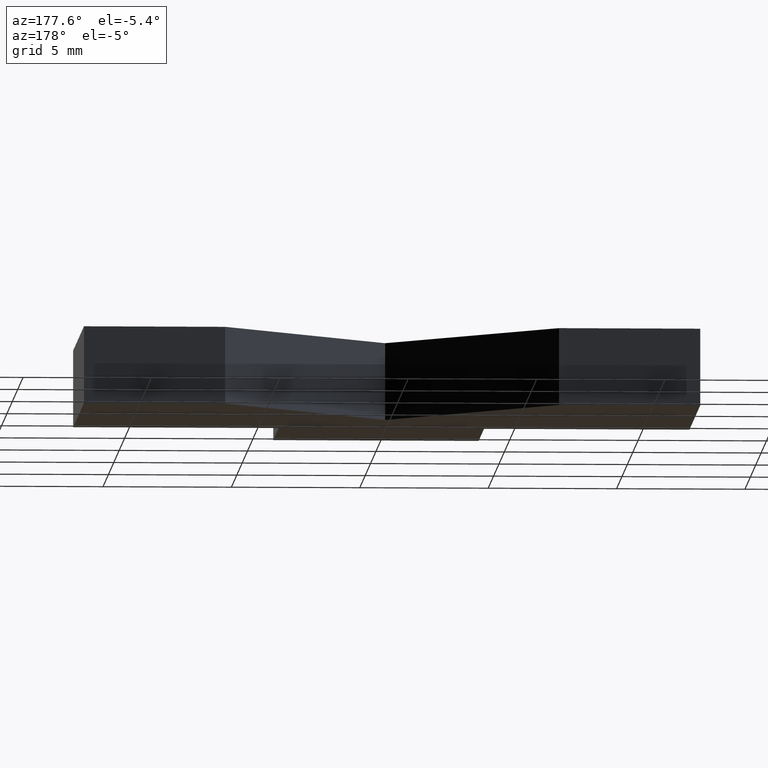
[diagram: clean part render]
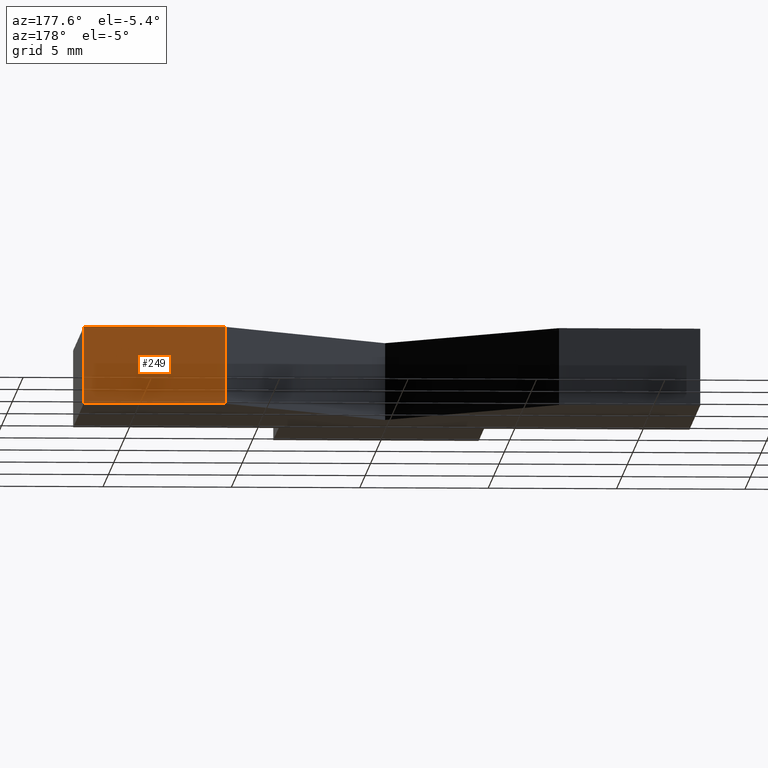
[diagram: same view with one face highlighted and labeled with its STEP entity id]
A machine part, auxiliary view. The second image highlights one B-rep face of the part: STEP entity #249.
In plain terms, the highlighted planar face has unit normal (0, 1, 0).
Its self-contained STEP definition (entity closure, byte-faithful):
#23=FACE_OUTER_BOUND('',#36,.T.);
#36=EDGE_LOOP('',(#198,#199,#200,#201));
#49=LINE('',#370,#82);
#65=LINE('',#401,#98);
#66=LINE('',#404,#99);
#67=LINE('',#405,#100);
#82=VECTOR('',#302,10.);
#98=VECTOR('',#330,10.);
#99=VECTOR('',#333,10.);
#100=VECTOR('',#334,10.);
#115=VERTEX_POINT('',#367);
#116=VERTEX_POINT('',#369);
#125=VERTEX_POINT('',#399);
#126=VERTEX_POINT('',#403);
#137=EDGE_CURVE('',#116,#115,#49,.T.);
#153=EDGE_CURVE('',#125,#115,#65,.T.);
#154=EDGE_CURVE('',#125,#126,#66,.T.);
#155=EDGE_CURVE('',#126,#116,#67,.T.);
#198=ORIENTED_EDGE('',*,*,#154,.T.);
#199=ORIENTED_EDGE('',*,*,#155,.T.);
#200=ORIENTED_EDGE('',*,*,#137,.T.);
#201=ORIENTED_EDGE('',*,*,#153,.F.);
#236=PLANE('',#285);
#249=ADVANCED_FACE('',(#23),#236,.T.);
#285=AXIS2_PLACEMENT_3D('',#402,#331,#332);
#302=DIRECTION('',(-1.,4.03717463500057E-16,0.));
#330=DIRECTION('',(0.,0.,-1.));
#331=DIRECTION('center_axis',(4.03717463500057E-16,1.,0.));
#332=DIRECTION('ref_axis',(0.,0.,1.));
#333=DIRECTION('',(1.,-4.03717463500057E-16,0.));
#334=DIRECTION('',(0.,0.,-1.));
#367=CARTESIAN_POINT('',(6.5,15.,-1.5));
#369=CARTESIAN_POINT('',(12.,15.,-1.5));
#370=CARTESIAN_POINT('',(6.5,15.,-1.5));
#399=CARTESIAN_POINT('',(6.5,15.,1.5));
#401=CARTESIAN_POINT('',(6.5,15.,0.));
#402=CARTESIAN_POINT('Origin',(6.5,15.,0.));
#403=CARTESIAN_POINT('',(12.,15.,1.5));
#404=CARTESIAN_POINT('',(6.5,15.,1.5));
#405=CARTESIAN_POINT('',(12.,15.,0.));